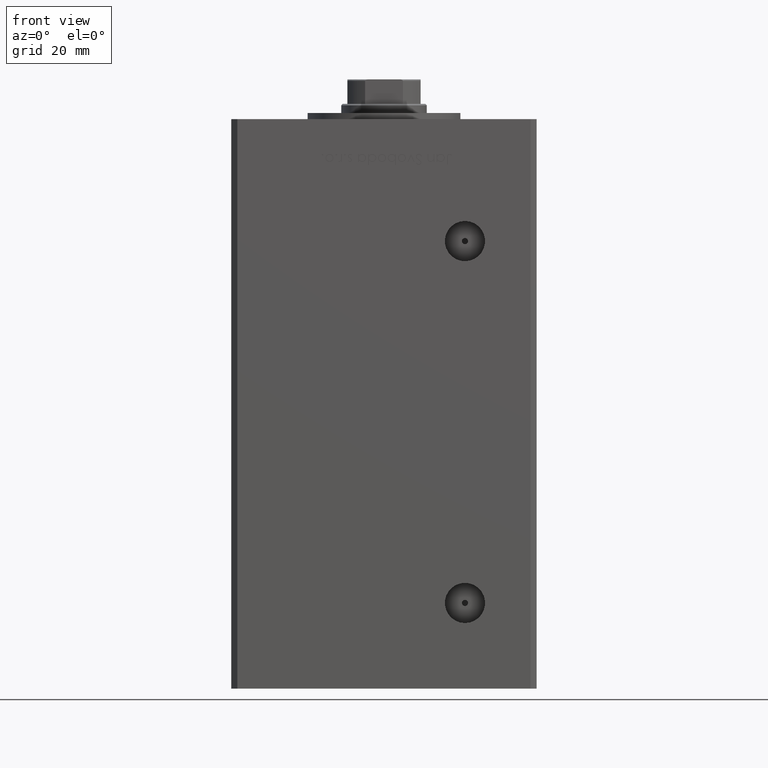
[diagram: clean part render]
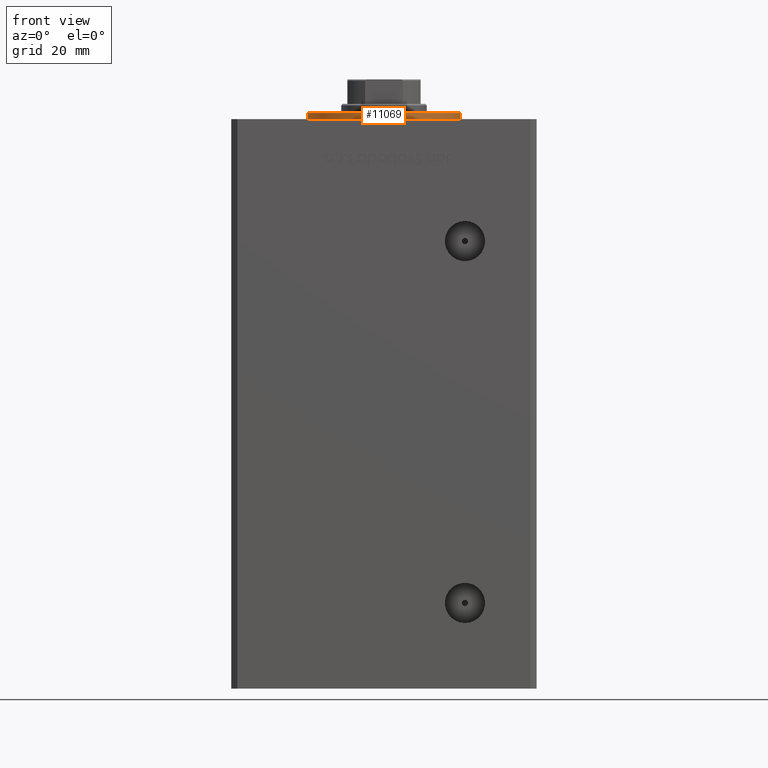
[diagram: same view with one face highlighted and labeled with its STEP entity id]
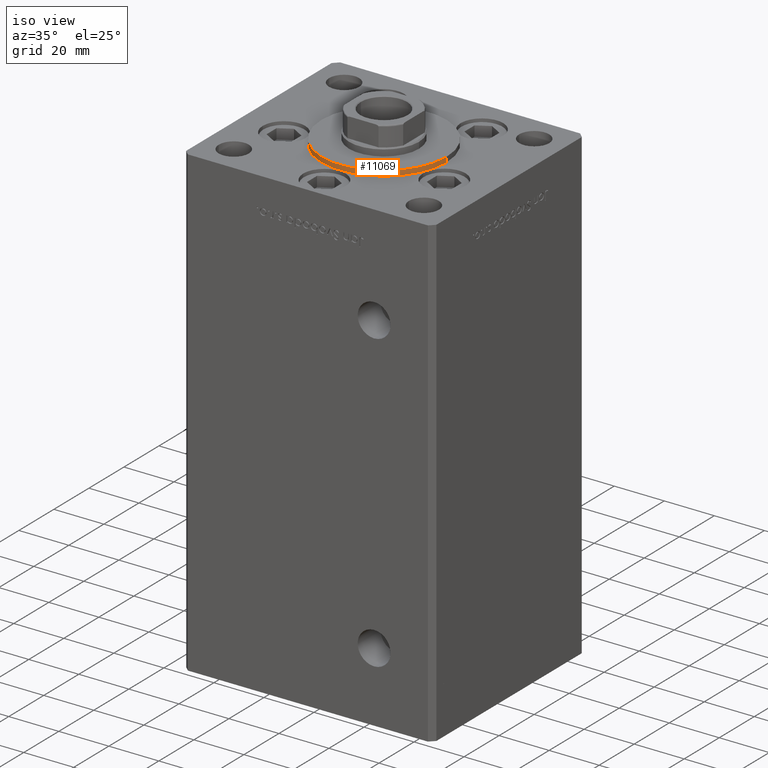
[diagram: same view with one face highlighted and labeled with its STEP entity id]
A machine part, front view. The second image highlights one B-rep face of the part: STEP entity #11069.
A second angle (iso view) of the same face is appended — the face is thin or edge-on in the first view.
In plain terms, the highlighted cylindrical surface (partial cylindrical patch) has radius 25 mm, axis along (-0, -0, -1).
Its self-contained STEP definition (entity closure, byte-faithful):
#645 = DIRECTION ( 'NONE',  ( -0.000000000000000000, -0.000000000000000000, -1.000000000000000000 ) ) ;
#2666 = DIRECTION ( 'NONE',  ( -0.000000000000000000, -0.000000000000000000, -1.000000000000000000 ) ) ;
#2946 = VERTEX_POINT ( 'NONE', #44243 ) ;
#4636 = ORIENTED_EDGE ( 'NONE', *, *, #44239, .F. ) ;
#5869 = VECTOR ( 'NONE', #39038, 1000.000000000000000 ) ;
#11069 = ADVANCED_FACE ( 'NONE', ( #46960 ), #50419, .T. ) ;
#11276 = AXIS2_PLACEMENT_3D ( 'NONE', #34577, #2666, #22696 ) ;
#13147 = CARTESIAN_POINT ( 'NONE',  ( 0.000000000000000000, -6.938893903907228378E-15, 0.000000000000000000 ) ) ;
#13558 = EDGE_CURVE ( 'NONE', #46481, #2946, #45871, .T. ) ;
#15673 = LINE ( 'NONE', #39693, #39746 ) ;
#16477 = CARTESIAN_POINT ( 'NONE',  ( 0.000000000000000000, -6.938893903907228378E-15, 2.000000000000000000 ) ) ;
#17883 = DIRECTION ( 'NONE',  ( 1.000000000000000000, 0.000000000000000000, 0.000000000000000000 ) ) ;
#19058 = AXIS2_PLACEMENT_3D ( 'NONE', #13147, #49300, #17883 ) ;
#19406 = VERTEX_POINT ( 'NONE', #23296 ) ;
#19891 = CIRCLE ( 'NONE', #19058, 25.00000000000000000 ) ;
#21914 = CARTESIAN_POINT ( 'NONE',  ( -25.00000000000000000, -6.938893903907228378E-15, 2.000000000000000000 ) ) ;
#22696 = DIRECTION ( 'NONE',  ( -1.000000000000000000, 0.000000000000000000, 0.000000000000000000 ) ) ;
#23104 = AXIS2_PLACEMENT_3D ( 'NONE', #16477, #44436, #44181 ) ;
#23156 = CARTESIAN_POINT ( 'NONE',  ( -25.00000000000000000, -6.938893903907228378E-15, 2.000000000000000000 ) ) ;
#23187 = EDGE_CURVE ( 'NONE', #19406, #24141, #19891, .T. ) ;
#23296 = CARTESIAN_POINT ( 'NONE',  ( -25.00000000000000000, -6.938893903907228378E-15, 0.000000000000000000 ) ) ;
#24141 = VERTEX_POINT ( 'NONE', #26496 ) ;
#26496 = CARTESIAN_POINT ( 'NONE',  ( 25.00000000000000000, -3.877276906038844941E-15, 0.000000000000000000 ) ) ;
#33415 = ORIENTED_EDGE ( 'NONE', *, *, #36844, .T. ) ;
#34048 = LINE ( 'NONE', #21914, #5869 ) ;
#34577 = CARTESIAN_POINT ( 'NONE',  ( 0.000000000000000000, -6.938893903907228378E-15, 2.000000000000000000 ) ) ;
#36844 = EDGE_CURVE ( 'NONE', #46481, #19406, #34048, .T. ) ;
#36987 = EDGE_LOOP ( 'NONE', ( #4636, #52171, #33415, #48812 ) ) ;
#39038 = DIRECTION ( 'NONE',  ( -0.000000000000000000, -0.000000000000000000, -1.000000000000000000 ) ) ;
#39693 = CARTESIAN_POINT ( 'NONE',  ( 25.00000000000000000, -3.877276906038844941E-15, 2.000000000000000000 ) ) ;
#39746 = VECTOR ( 'NONE', #645, 1000.000000000000000 ) ;
#44181 = DIRECTION ( 'NONE',  ( 1.000000000000000000, 0.000000000000000000, 0.000000000000000000 ) ) ;
#44239 = EDGE_CURVE ( 'NONE', #2946, #24141, #15673, .T. ) ;
#44243 = CARTESIAN_POINT ( 'NONE',  ( 25.00000000000000000, -3.877276906038844941E-15, 2.000000000000000000 ) ) ;
#44436 = DIRECTION ( 'NONE',  ( 0.000000000000000000, 0.000000000000000000, 1.000000000000000000 ) ) ;
#45871 = CIRCLE ( 'NONE', #23104, 25.00000000000000000 ) ;
#46481 = VERTEX_POINT ( 'NONE', #23156 ) ;
#46960 = FACE_OUTER_BOUND ( 'NONE', #36987, .T. ) ;
#48812 = ORIENTED_EDGE ( 'NONE', *, *, #23187, .T. ) ;
#49300 = DIRECTION ( 'NONE',  ( 0.000000000000000000, 0.000000000000000000, 1.000000000000000000 ) ) ;
#50419 = CYLINDRICAL_SURFACE ( 'NONE', #11276, 25.00000000000000000 ) ;
#52171 = ORIENTED_EDGE ( 'NONE', *, *, #13558, .F. ) ;